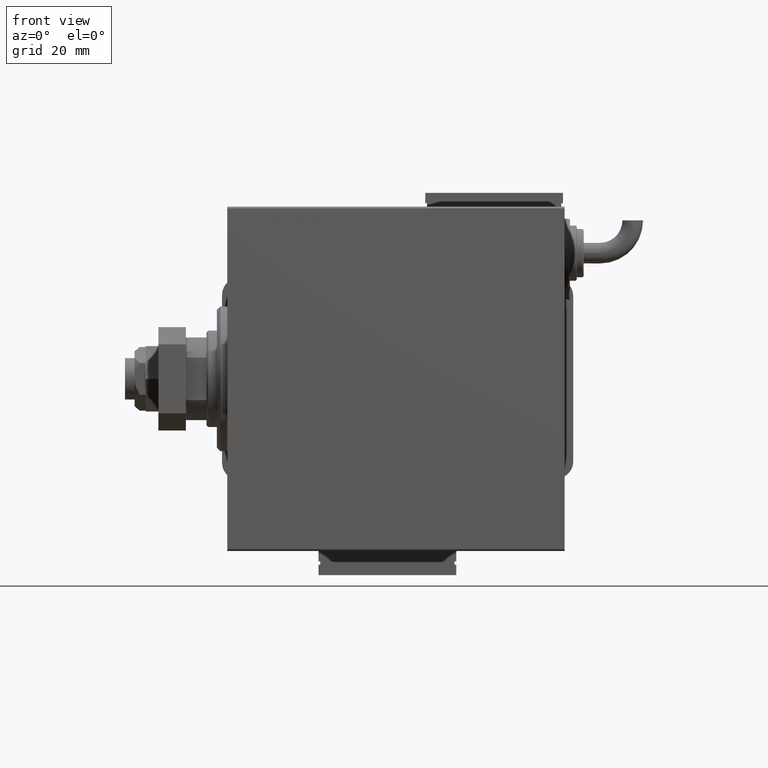
[diagram: clean part render]
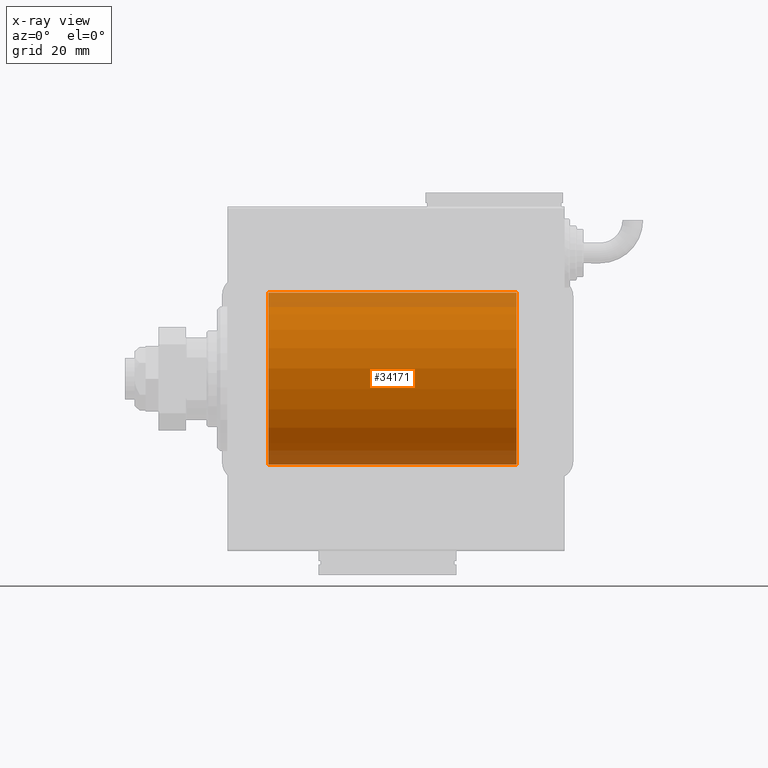
[diagram: x-ray — body ghosted, one internal face saturated and labeled with its STEP entity id]
A machine part, front view, then the same camera in x-ray: the body is ghosted and one INTERNAL B-rep face — a face not visible from any outside direction — is saturated and labeled: STEP entity #34171.
In plain terms, the highlighted cylindrical surface (partial cylindrical patch) has radius 25 mm, axis along (-1, -0, -0).
Its self-contained STEP definition (entity closure, byte-faithful):
#55 = CARTESIAN_POINT ( 'NONE',  ( 26.83172358506043764, -1.255214705003178555, -24.96884293994578741 ) ) ;
#310 = ORIENTED_EDGE ( 'NONE', *, *, #25557, .T. ) ;
#356 = ORIENTED_EDGE ( 'NONE', *, *, #50425, .T. ) ;
#681 = EDGE_CURVE ( 'NONE', #34040, #21620, #2012, .T. ) ;
#1828 = DIRECTION ( 'NONE',  ( 0.000000000000000000, 0.000000000000000000, 1.000000000000000000 ) ) ;
#1990 = CARTESIAN_POINT ( 'NONE',  ( 82.50000000000001421, 3.061616978466502512E-15, -25.00000000000000000 ) ) ;
#2012 = LINE ( 'NONE', #54095, #21799 ) ;
#2046 = VERTEX_POINT ( 'NONE', #35748 ) ;
#2223 = CARTESIAN_POINT ( 'NONE',  ( 82.50000000000001421, 3.061616978466502512E-15, -25.00000000000000000 ) ) ;
#2290 = CYLINDRICAL_SURFACE ( 'NONE', #20519, 25.00000000000000000 ) ;
#2294 = CARTESIAN_POINT ( 'NONE',  ( 82.37215969408609340, -0.8058335233485441895, -24.98746277938383287 ) ) ;
#2595 = DIRECTION ( 'NONE',  ( 0.000000000000000000, 0.000000000000000000, 1.000000000000000000 ) ) ;
#2598 = CARTESIAN_POINT ( 'NONE',  ( 79.19564339083697746, -2.372734907014171224, -24.88722742718433523 ) ) ;
#3585 = DIRECTION ( 'NONE',  ( -1.000000000000000000, -0.000000000000000000, -0.000000000000000000 ) ) ;
#4017 = CARTESIAN_POINT ( 'NONE',  ( 29.80788342405805125, -2.371528299825743424, -24.88734287464369999 ) ) ;
#4311 = CARTESIAN_POINT ( 'NONE',  ( 27.47743225659811017, -1.989585286700241928, -24.92087098724766037 ) ) ;
#4531 = LINE ( 'NONE', #55407, #51681 ) ;
#4608 = CARTESIAN_POINT ( 'NONE',  ( 27.01461966282905891, -1.528152964861308138, -24.95362559291378801 ) ) ;
#7162 = CARTESIAN_POINT ( 'NONE',  ( 79.83676410361458409, -2.500125740978189182, -24.87467329022545215 ) ) ;
#7467 = CARTESIAN_POINT ( 'NONE',  ( 82.42014909220930008, -0.6480119923854186226, -24.99212088949390775 ) ) ;
#7616 = DIRECTION ( 'NONE',  ( -1.000000000000000000, 0.000000000000000000, 0.000000000000000000 ) ) ;
#8359 = ORIENTED_EDGE ( 'NONE', *, *, #681, .T. ) ;
#8914 = CARTESIAN_POINT ( 'NONE',  ( 28.35439333851369526, -2.420689345803757053, -24.88254961038873958 ) ) ;
#9811 = CARTESIAN_POINT ( 'NONE',  ( 30.98749815834399257, -1.525407911884362644, -24.95379469572362652 ) ) ;
#10106 = CARTESIAN_POINT ( 'NONE',  ( 30.25383195424503668, -2.169003991399866660, -24.90589728951138682 ) ) ;
#11148 = CARTESIAN_POINT ( 'NONE',  ( 80.16706495178063108, -2.499872792855076575, -24.87469871246082675 ) ) ;
#11657 = VECTOR ( 'NONE', #29049, 1000.000000000000000 ) ;
#12077 = DIRECTION ( 'NONE',  ( -1.000000000000000000, 0.000000000000000000, 0.000000000000000000 ) ) ;
#12201 = CARTESIAN_POINT ( 'NONE',  ( 84.00000000000000000, 0.000000000000000000, 0.000000000000000000 ) ) ;
#12353 = CARTESIAN_POINT ( 'NONE',  ( 80.32947680114270383, -2.483544361357264751, -24.87635491893501438 ) ) ;
#12407 = CARTESIAN_POINT ( 'NONE',  ( 31.50000000000000000, 3.061616978460191625E-15, -25.00000000000000000 ) ) ;
#13182 = B_SPLINE_CURVE_WITH_KNOTS ( 'NONE', 3,
 ( #32955, #13487, #14687, #32054, #23523, #51529, #32657, #9811, #28393, #50624, #46968, #10106, #32358, #4017, #22615, #41190, #55789, #36624, #46071, #8914, #27482, #18344, #46372, #4311, #41495, #55489, #4608, #55, #18650, #39043, #52437, #47571 ),
 .UNSPECIFIED., .F., .F.,
 ( 4, 2, 2, 2, 2, 2, 2, 2, 2, 2, 2, 2, 2, 2, 2, 4 ),
 ( 0.007821024441662303289, 0.008309723826317913162, 0.008798423210973523034, 0.009287122595629127703, 0.009775821980284732371, 0.01026452136494033877, 0.01075322074959594518, 0.01124192013425154985, 0.01173061951890715451, 0.01221931890356276092, 0.01270801828821836559, 0.01319671767287397025, 0.01368541705752957666, 0.01417411644218518132, 0.01466281582684078599, 0.01564021459615200227 ),
 .UNSPECIFIED. ) ;
#13487 = CARTESIAN_POINT ( 'NONE',  ( 31.49999999999999289, -0.1631750940176174836, -25.00000000000000711 ) ) ;
#13520 = EDGE_CURVE ( 'NONE', #34040, #20302, #20181, .T. ) ;
#13685 = CARTESIAN_POINT ( 'NONE',  ( 84.00000000000000000, 0.000000000000000000, 25.00000000000000000 ) ) ;
#14687 = CARTESIAN_POINT ( 'NONE',  ( 31.48417840057656036, -0.3254210271412191213, -24.99840249400844172 ) ) ;
#15731 = CARTESIAN_POINT ( 'NONE',  ( 82.24760251019554858, -1.106703319666881180, -24.97594585958024282 ) ) ;
#15976 = VERTEX_POINT ( 'NONE', #56391 ) ;
#15994 = EDGE_CURVE ( 'NONE', #19509, #17986, #13182, .T. ) ;
#16027 = CARTESIAN_POINT ( 'NONE',  ( 78.34878866440891443, -1.884161199660618013, -24.92916496727982789 ) ) ;
#16324 = DIRECTION ( 'NONE',  ( -1.000000000000000000, -0.000000000000000000, -0.000000000000000000 ) ) ;
#16648 = CARTESIAN_POINT ( 'NONE',  ( 11.99999999999999645, 0.000000000000000000, 0.000000000000000000 ) ) ;
#17986 = VERTEX_POINT ( 'NONE', #51703 ) ;
#18196 = CARTESIAN_POINT ( 'NONE',  ( 77.50000000000001421, -3.163294216715586498E-15, -25.00000000000000000 ) ) ;
#18344 = CARTESIAN_POINT ( 'NONE',  ( 27.89276154161589716, -2.247417070759893498, -24.89885693081946272 ) ) ;
#18650 = CARTESIAN_POINT ( 'NONE',  ( 26.75393620905934000, -1.109818057797415936, -24.97580694515542987 ) ) ;
#19509 = VERTEX_POINT ( 'NONE', #12407 ) ;
#20181 = CIRCLE ( 'NONE', #29923, 25.00000000000000000 ) ;
#20293 = CARTESIAN_POINT ( 'NONE',  ( 77.50000000000001421, -0.3305063766663793867, -25.00000000000000711 ) ) ;
#20302 = VERTEX_POINT ( 'NONE', #13685 ) ;
#20519 = AXIS2_PLACEMENT_3D ( 'NONE', #58036, #16324, #2595 ) ;
#20629 = DIRECTION ( 'NONE',  ( -1.000000000000000000, -0.000000000000000000, -0.000000000000000000 ) ) ;
#20893 = CARTESIAN_POINT ( 'NONE',  ( 82.50000000000000000, -0.1631750940176171505, -25.00000000000000355 ) ) ;
#21192 = CARTESIAN_POINT ( 'NONE',  ( 78.89276154161592558, -2.247417070759896607, -24.89885693081946272 ) ) ;
#21491 = CARTESIAN_POINT ( 'NONE',  ( 81.98749815834398191, -1.525407911884367529, -24.95379469572361586 ) ) ;
#21620 = VERTEX_POINT ( 'NONE', #2223 ) ;
#21799 = VECTOR ( 'NONE', #20629, 1000.000000000000000 ) ;
#22615 = CARTESIAN_POINT ( 'NONE',  ( 29.64904390169096615, -2.419770561643904472, -24.88263927071750459 ) ) ;
#23300 = EDGE_LOOP ( 'NONE', ( #54272, #8359, #53462, #356, #28806, #28930, #310, #36534 ) ) ;
#23523 = CARTESIAN_POINT ( 'NONE',  ( 31.37215969408607563, -0.8058335233485421911, -24.98746277938383287 ) ) ;
#23877 = CARTESIAN_POINT ( 'NONE',  ( 84.00000000000000000, 0.000000000000000000, 25.00000000000000000 ) ) ;
#23894 = EDGE_CURVE ( 'NONE', #21620, #25272, #30689, .T. ) ;
#24852 = CARTESIAN_POINT ( 'NONE',  ( 80.80788342405803348, -2.371528299825742092, -24.88734287464371064 ) ) ;
#25150 = CARTESIAN_POINT ( 'NONE',  ( 79.35439333851368815, -2.420689345803750836, -24.88254961038873958 ) ) ;
#25272 = VERTEX_POINT ( 'NONE', #18196 ) ;
#25557 = EDGE_CURVE ( 'NONE', #2046, #15976, #39904, .T. ) ;
#27482 = CARTESIAN_POINT ( 'NONE',  ( 28.19564339083698457, -2.372734907014170780, -24.88722742718433878 ) ) ;
#28393 = CARTESIAN_POINT ( 'NONE',  ( 30.88412382786470900, -1.651251241585097951, -24.94567559498349141 ) ) ;
#28806 = ORIENTED_EDGE ( 'NONE', *, *, #15994, .T. ) ;
#28930 = ORIENTED_EDGE ( 'NONE', *, *, #31848, .T. ) ;
#29049 = DIRECTION ( 'NONE',  ( -1.000000000000000000, -0.000000000000000000, -0.000000000000000000 ) ) ;
#29923 = AXIS2_PLACEMENT_3D ( 'NONE', #12201, #7616, #1828 ) ;
#30689 = B_SPLINE_CURVE_WITH_KNOTS ( 'NONE', 3,
 ( #1990, #20893, #57437, #7467, #2294, #15731, #58635, #21491, #35490, #53466, #34603, #57739, #54067, #24852, #48916, #12353, #11148, #7162, #48315, #25150, #2598, #21192, #43435, #40070, #16027, #39763, #58335, #35197, #34303, #52871, #20293, #53772 ),
 .UNSPECIFIED., .F., .F.,
 ( 4, 2, 2, 2, 2, 2, 2, 2, 2, 2, 2, 2, 2, 2, 2, 4 ),
 ( 0.007821024441662298085, 0.008309723826317902753, 0.008798423210973509156, 0.009287122595629113825, 0.009775821980284718493, 0.01026452136494032490, 0.01075322074959592956, 0.01124192013425153597, 0.01173061951890714064, 0.01221931890356274530, 0.01270801828821835171, 0.01319671767287395811, 0.01368541705752956104, 0.01417411644218516745, 0.01466281582684077212, 0.01564021459615199880 ),
 .UNSPECIFIED. ) ;
#31848 = EDGE_CURVE ( 'NONE', #17986, #2046, #4531, .T. ) ;
#32054 = CARTESIAN_POINT ( 'NONE',  ( 31.42014909220929653, -0.6480119923854192887, -24.99212088949391131 ) ) ;
#32358 = CARTESIAN_POINT ( 'NONE',  ( 30.11036796508863844, -2.245863995402896496, -24.89899750494197406 ) ) ;
#32657 = CARTESIAN_POINT ( 'NONE',  ( 31.17011290280923674, -1.252049606094335132, -24.96900299967627035 ) ) ;
#32955 = CARTESIAN_POINT ( 'NONE',  ( 31.50000000000000000, 3.061616978460191625E-15, -25.00000000000000000 ) ) ;
#33113 = AXIS2_PLACEMENT_3D ( 'NONE', #16648, #12077, #39497 ) ;
#34040 = VERTEX_POINT ( 'NONE', #48609 ) ;
#34171 = ADVANCED_FACE ( 'NONE', ( #44039 ), #2290, .F. ) ;
#34303 = CARTESIAN_POINT ( 'NONE',  ( 77.75393620905936132, -1.109818057797414381, -24.97580694515541921 ) ) ;
#34603 = CARTESIAN_POINT ( 'NONE',  ( 81.52536182243082408, -1.987446652080251619, -24.92104239223420592 ) ) ;
#35197 = CARTESIAN_POINT ( 'NONE',  ( 77.83172358506043054, -1.255214705003180109, -24.96884293994577675 ) ) ;
#35490 = CARTESIAN_POINT ( 'NONE',  ( 81.88412382786472676, -1.651251241585101059, -24.94567559498348430 ) ) ;
#35748 = CARTESIAN_POINT ( 'NONE',  ( 11.99999999999999645, 3.061616997868382254E-15, -25.00000000000000000 ) ) ;
#35895 = LINE ( 'NONE', #46763, #43376 ) ;
#36534 = ORIENTED_EDGE ( 'NONE', *, *, #60201, .F. ) ;
#36624 = CARTESIAN_POINT ( 'NONE',  ( 28.83676410361456632, -2.500125740978190958, -24.87467329022545215 ) ) ;
#39043 = CARTESIAN_POINT ( 'NONE',  ( 26.56650644760253499, -0.6588655613945881839, -24.99312727339971119 ) ) ;
#39497 = DIRECTION ( 'NONE',  ( 0.000000000000000000, 0.000000000000000000, 1.000000000000000000 ) ) ;
#39763 = CARTESIAN_POINT ( 'NONE',  ( 78.11814045851357946, -1.653834020452939146, -24.94550385189584318 ) ) ;
#39904 = CIRCLE ( 'NONE', #33113, 25.00000000000000000 ) ;
#40070 = CARTESIAN_POINT ( 'NONE',  ( 78.47743225659816346, -1.989585286700248590, -24.92087098724766747 ) ) ;
#41190 = CARTESIAN_POINT ( 'NONE',  ( 29.32947680114269318, -2.483544361357266972, -24.87635491893501793 ) ) ;
#41495 = CARTESIAN_POINT ( 'NONE',  ( 27.34878866440887535, -1.884161199660613351, -24.92916496727982079 ) ) ;
#43376 = VECTOR ( 'NONE', #3585, 1000.000000000000000 ) ;
#43435 = CARTESIAN_POINT ( 'NONE',  ( 78.74915976075949686, -2.170728182476720391, -24.90574631553725027 ) ) ;
#44039 = FACE_OUTER_BOUND ( 'NONE', #23300, .T. ) ;
#46071 = CARTESIAN_POINT ( 'NONE',  ( 28.67403429960539540, -2.484007091859760319, -24.87630842367762440 ) ) ;
#46372 = CARTESIAN_POINT ( 'NONE',  ( 27.74915976075945068, -2.170728182476715951, -24.90574631553724672 ) ) ;
#46763 = CARTESIAN_POINT ( 'NONE',  ( 84.00000000000000000, 3.061616997868382254E-15, -25.00000000000000000 ) ) ;
#46968 = CARTESIAN_POINT ( 'NONE',  ( 30.52536182243080276, -1.987446652080258724, -24.92104239223419881 ) ) ;
#47571 = CARTESIAN_POINT ( 'NONE',  ( 26.50000000000000355, -3.314090237927254693E-15, -25.00000000000000000 ) ) ;
#48315 = CARTESIAN_POINT ( 'NONE',  ( 79.67403429960539540, -2.484007091859756766, -24.87630842367762796 ) ) ;
#48609 = CARTESIAN_POINT ( 'NONE',  ( 84.00000000000000000, 3.061616997868382254E-15, -25.00000000000000000 ) ) ;
#48916 = CARTESIAN_POINT ( 'NONE',  ( 80.64904390169097326, -2.419770561643902695, -24.88263927071750814 ) ) ;
#50425 = EDGE_CURVE ( 'NONE', #25272, #19509, #35895, .T. ) ;
#50624 = CARTESIAN_POINT ( 'NONE',  ( 30.65383336149338689, -1.881857718844712757, -24.92933960374833902 ) ) ;
#51529 = CARTESIAN_POINT ( 'NONE',  ( 31.24760251019550950, -1.106703319666878960, -24.97594585958023217 ) ) ;
#51681 = VECTOR ( 'NONE', #54220, 1000.000000000000000 ) ;
#51703 = CARTESIAN_POINT ( 'NONE',  ( 26.50000000000000355, -3.314090237927254693E-15, -25.00000000000000000 ) ) ;
#52192 = LINE ( 'NONE', #23877, #11657 ) ;
#52437 = CARTESIAN_POINT ( 'NONE',  ( 26.50000000000001066, -0.3305063766663772773, -25.00000000000000711 ) ) ;
#52871 = CARTESIAN_POINT ( 'NONE',  ( 77.56650644760256341, -0.6588655613945877398, -24.99312727339970408 ) ) ;
#53462 = ORIENTED_EDGE ( 'NONE', *, *, #23894, .T. ) ;
#53466 = CARTESIAN_POINT ( 'NONE',  ( 81.65383336149341176, -1.881857718844715421, -24.92933960374833546 ) ) ;
#53772 = CARTESIAN_POINT ( 'NONE',  ( 77.50000000000001421, -3.163294216715586498E-15, -25.00000000000000000 ) ) ;
#54067 = CARTESIAN_POINT ( 'NONE',  ( 81.11036796508865621, -2.245863995402895164, -24.89899750494197406 ) ) ;
#54095 = CARTESIAN_POINT ( 'NONE',  ( 84.00000000000000000, 3.061616997868382254E-15, -25.00000000000000000 ) ) ;
#54220 = DIRECTION ( 'NONE',  ( -1.000000000000000000, -0.000000000000000000, -0.000000000000000000 ) ) ;
#54272 = ORIENTED_EDGE ( 'NONE', *, *, #13520, .F. ) ;
#55407 = CARTESIAN_POINT ( 'NONE',  ( 84.00000000000000000, 3.061616997868382254E-15, -25.00000000000000000 ) ) ;
#55489 = CARTESIAN_POINT ( 'NONE',  ( 27.11814045851354393, -1.653834020452936260, -24.94550385189585029 ) ) ;
#55789 = CARTESIAN_POINT ( 'NONE',  ( 29.16706495178061331, -2.499872792855078352, -24.87469871246083031 ) ) ;
#56391 = CARTESIAN_POINT ( 'NONE',  ( 11.99999999999999645, 0.000000000000000000, 25.00000000000000000 ) ) ;
#57437 = CARTESIAN_POINT ( 'NONE',  ( 82.48417840057659589, -0.3254210271412191768, -24.99840249400844883 ) ) ;
#57739 = CARTESIAN_POINT ( 'NONE',  ( 81.25383195424505800, -2.169003991399860443, -24.90589728951139037 ) ) ;
#58036 = CARTESIAN_POINT ( 'NONE',  ( 84.00000000000000000, 0.000000000000000000, 0.000000000000000000 ) ) ;
#58335 = CARTESIAN_POINT ( 'NONE',  ( 78.01461966282909088, -1.528152964861308138, -24.95362559291378091 ) ) ;
#58635 = CARTESIAN_POINT ( 'NONE',  ( 82.17011290280929359, -1.252049606094341572, -24.96900299967627745 ) ) ;
#60201 = EDGE_CURVE ( 'NONE', #20302, #15976, #52192, .T. ) ;